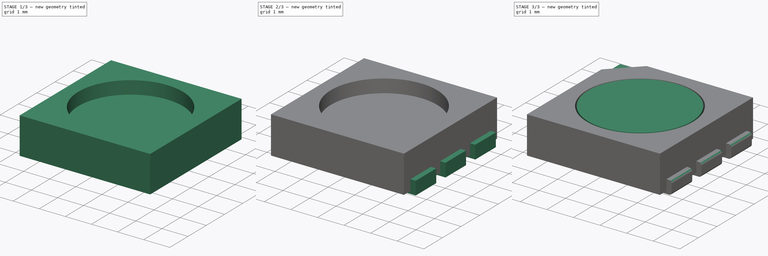
[diagram: build sequence overview — one tinted view per stage of 3, left to right]
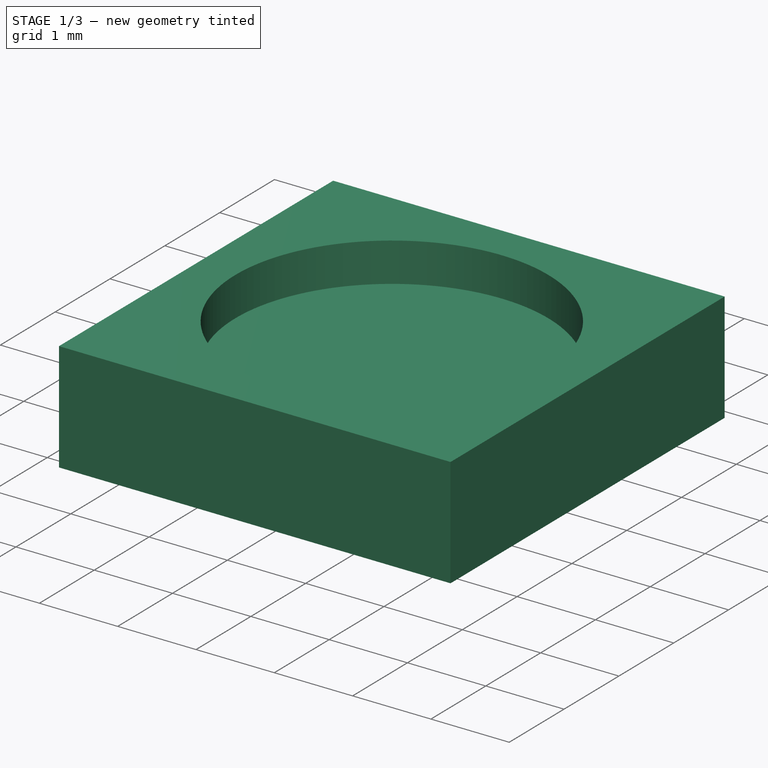
[diagram: stage 1 of 3 — iso view after this stage's code; geometry added in this stage tinted green]
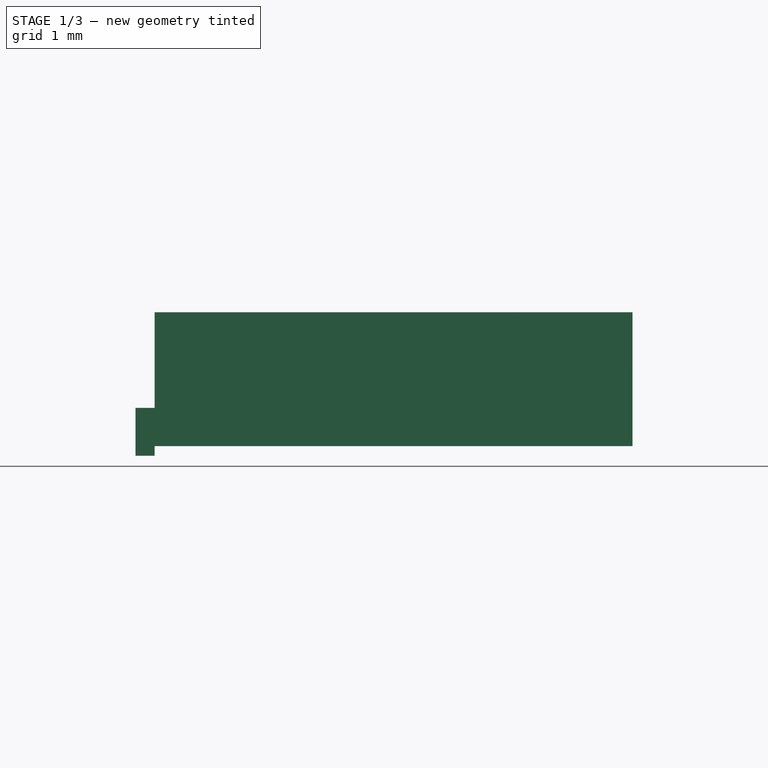
[diagram: stage 1 of 3 — front view after this stage's code; geometry added in this stage tinted green]
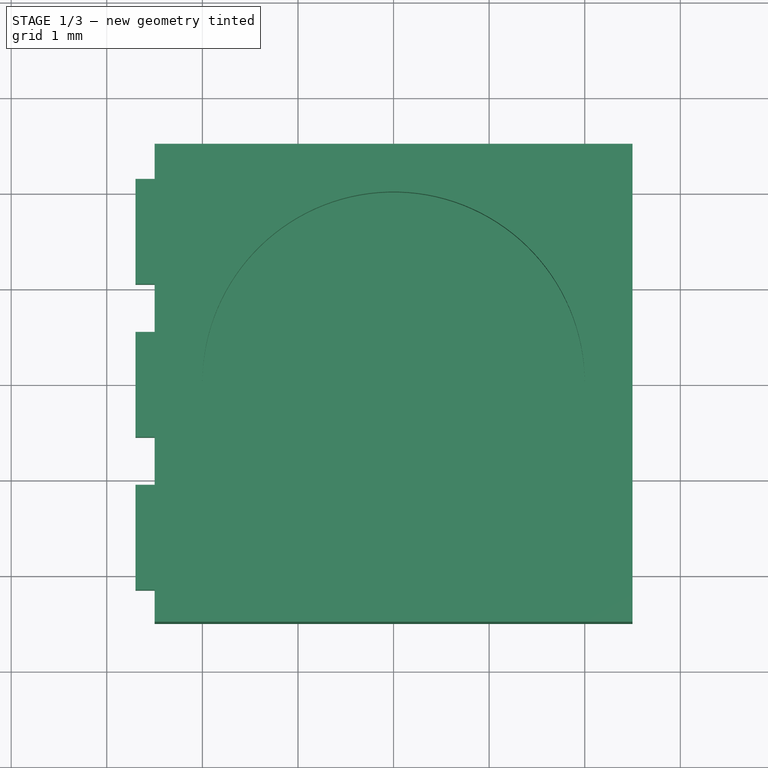
[diagram: stage 1 of 3 — top view after this stage's code; geometry added in this stage tinted green]
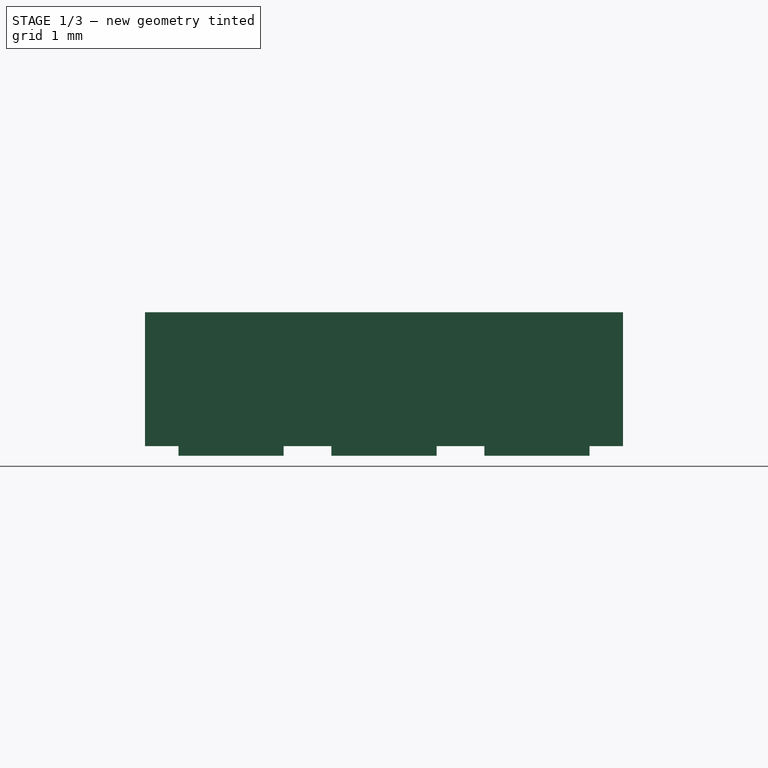
[diagram: stage 1 of 3 — right view after this stage's code; geometry added in this stage tinted green]
FCSTD DOCUMENT  (FreeCAD 0.17R13528 (Git))
Label: RGB_LED_5050-6
License: All rights reserved
LicenseURL: http://en.wikipedia.org/wiki/All_rights_reserved
objects: Sketcher::SketchObject×7, PartDesign::Pad×5, PartDesign::Pocket×2, PartDesign::Fillet×1, PartDesign::Body×1
note: 23 computed .brp shape members not serialized (recipe doc carries the construction recipe); baked Part::Feature solids carry a one-line shape summary decoded from their .brp

FEATURE [Sketcher::SketchObject] Sketch
  MapMode = 5
  Support = -> [XY_Plane]
  sketch-geometry (4):
    g0: LineSegment StartX=-2.5 StartY=2.5 StartZ=0 EndX=2.5 EndY=2.5 EndZ=0
    g1: LineSegment StartX=2.5 StartY=2.5 StartZ=0 EndX=2.5 EndY=-2.5 EndZ=0
    g2: LineSegment StartX=2.5 StartY=-2.5 StartZ=0 EndX=-2.5 EndY=-2.5 EndZ=0
    g3: LineSegment StartX=-2.5 StartY=-2.5 StartZ=0 EndX=-2.5 EndY=2.5 EndZ=0
  constraints (12):
    c: Coincident(g0,g1)
    c: Coincident(g1,g2)
    c: Coincident(g2,g3)
    c: Coincident(g3,g0)
    c: Horizontal(g0)
    c: Horizontal(g2)
    c: Vertical(g1)
    c: Vertical(g3)
    c: Symmetric(g0,g0,g-2)
    c: Symmetric(g0,g2,g-1)
    c: Equal(g0,g3)
    c: DistanceX(g0,g0) = 5
FEATURE [PartDesign::Pad] Pad
  Length = 1.4
  Length2 = 100
  Profile = -> Sketch
  Refine = true
  Type = 0
FEATURE [Sketcher::SketchObject] Sketch001
  MapMode = 5
  Placement = pos=(0,0,1.4) rot=(0,0,1;0rad)
  Support = -> [Pad]
  sketch-geometry (1):
    g0: Circle CenterX=0 CenterY=0 CenterZ=0 NormalX=0 NormalY=0 NormalZ=1 AngleXU=0 Radius=2
  constraints (2):
    c: Coincident(g0,g-1)
    c: Radius(g0) = 2
FEATURE [PartDesign::Pocket] Pocket
  BaseFeature = -> Pad
  Length = 0.5
  Length2 = 100
  Profile = -> Sketch001
  Refine = true
  Type = 0
FEATURE [Sketcher::SketchObject] Sketch002
  ExternalGeometry = -> [Pocket]
  MapMode = 5
  Placement = pos=(-2.5,0,0) rot=(0.57735,-0.57735,-0.57735;2.0944rad)
  Support = -> [Pocket]
  sketch-geometry (14):
    g0: LineSegment StartX=-0.55 StartY=0.4 StartZ=0 EndX=0.55 EndY=0.4 EndZ=0
    g1: LineSegment StartX=0.55 StartY=0.4 StartZ=0 EndX=0.55 EndY=-0.1 EndZ=0
    g2: LineSegment StartX=0.55 StartY=-0.1 StartZ=0 EndX=-0.55 EndY=-0.1 EndZ=0
    g3: LineSegment StartX=-0.55 StartY=-0.1 StartZ=0 EndX=-0.55 EndY=0.4 EndZ=0
    g4: LineSegment StartX=1.05 StartY=0.4 StartZ=0 EndX=2.15 EndY=0.4 EndZ=0
    g5: LineSegment StartX=2.15 StartY=0.4 StartZ=0 EndX=2.15 EndY=-0.1 EndZ=0
    g6: LineSegment StartX=2.15 StartY=-0.1 StartZ=0 EndX=1.05 EndY=-0.1 EndZ=0
    g7: LineSegment StartX=1.05 StartY=-0.1 StartZ=0 EndX=1.05 EndY=0.4 EndZ=0
    g8: LineSegment StartX=-2.15 StartY=0.4 StartZ=0 EndX=-1.05 EndY=0.4 EndZ=0
    g9: LineSegment StartX=-1.05 StartY=0.4 StartZ=0 EndX=-1.05 EndY=-0.1 EndZ=0
    g10: LineSegment StartX=-1.05 StartY=-0.1 StartZ=0 EndX=-2.15 EndY=-0.1 EndZ=0
    g11: LineSegment StartX=-2.15 StartY=-0.1 StartZ=0 EndX=-2.15 EndY=0.4 EndZ=0
    g12: LineSegment [constr] StartX=-1.05 StartY=-0.1 StartZ=0 EndX=-0.55 EndY=-0.1 EndZ=0
    g13: LineSegment [constr] StartX=0.55 StartY=-0.1 StartZ=0 EndX=1.05 EndY=-0.1 EndZ=0
  constraints (40):
    c: Coincident(g0,g1)
    c: Coincident(g1,g2)
    c: Coincident(g2,g3)
    c: Coincident(g3,g0)
    c: Horizontal(g0)
    c: Horizontal(g2)
    c: Vertical(g1)
    c: Vertical(g3)
    c: Coincident(g4,g5)
    c: Coincident(g5,g6)
    c: Coincident(g6,g7)
    c: Coincident(g7,g4)
    c: Horizontal(g4)
    c: Horizontal(g6)
    c: Vertical(g5)
    c: Vertical(g7)
    c: Coincident(g8,g9)
    c: Coincident(g9,g10)
    c: Coincident(g10,g11)
    c: Coincident(g11,g8)
    c: Horizontal(g8)
    c: Horizontal(g10)
    c: Vertical(g9)
    c: Vertical(g11)
    c: DistanceY(g10,g-3) = 1.5
    c: Coincident(g12,g9)
    c: Coincident(g12,g2)
    c: Coincident(g13,g1)
    c: Coincident(g13,g6)
    c: Horizontal(g13)
    c: Horizontal(g12)
    c: Equal(g11,g3)
    c: Equal(g3,g7)
    c: Equal(g10,g2)
    c: Equal(g2,g6)
    c: Equal(g12,g13)
    c: Symmetric(g0,g0,g-2)
    c: DistanceX(g6,g6) = 1.1
    c: DistanceY(g5,g5) = 0.5
    c: DistanceX(g10,g6) = 3.2
FEATURE [PartDesign::Pad] Pad001
  BaseFeature = -> Pocket
  Length = 0.2
  Length2 = 100
  Profile = -> Sketch002
  Refine = true
  Type = 0
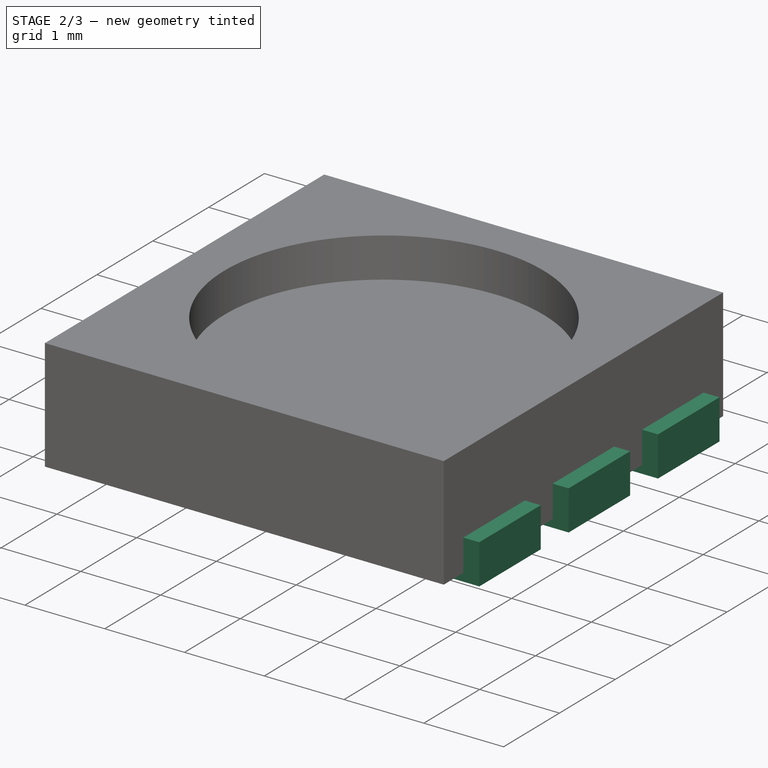
[diagram: stage 2 of 3 — iso view after this stage's code; geometry added in this stage tinted green]
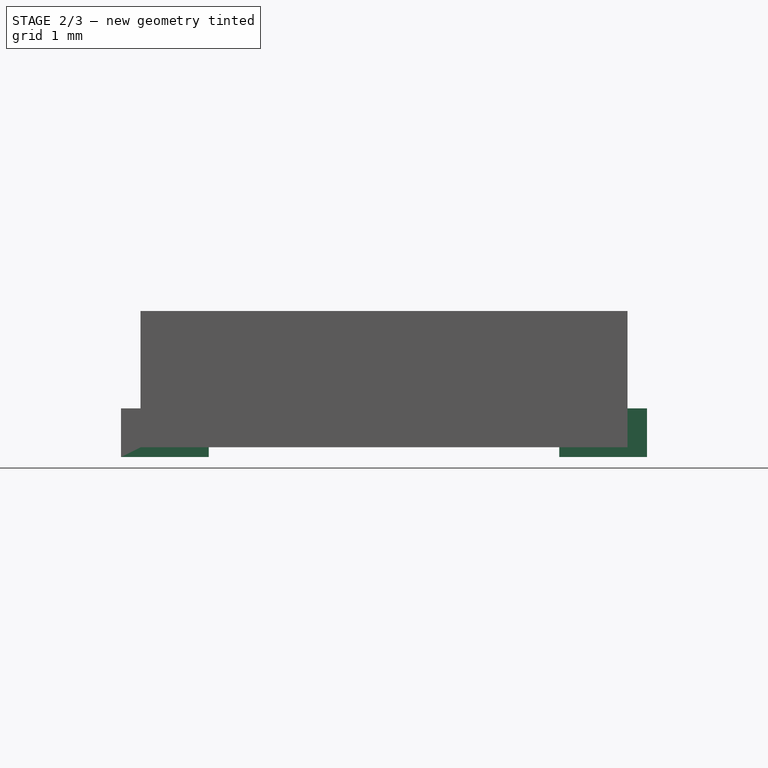
[diagram: stage 2 of 3 — front view after this stage's code; geometry added in this stage tinted green]
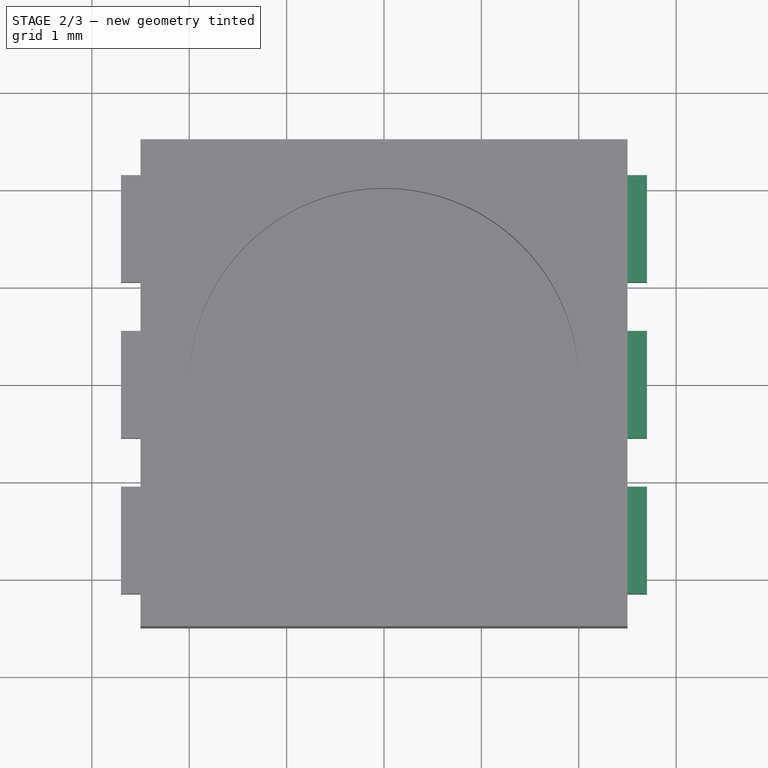
[diagram: stage 2 of 3 — top view after this stage's code; geometry added in this stage tinted green]
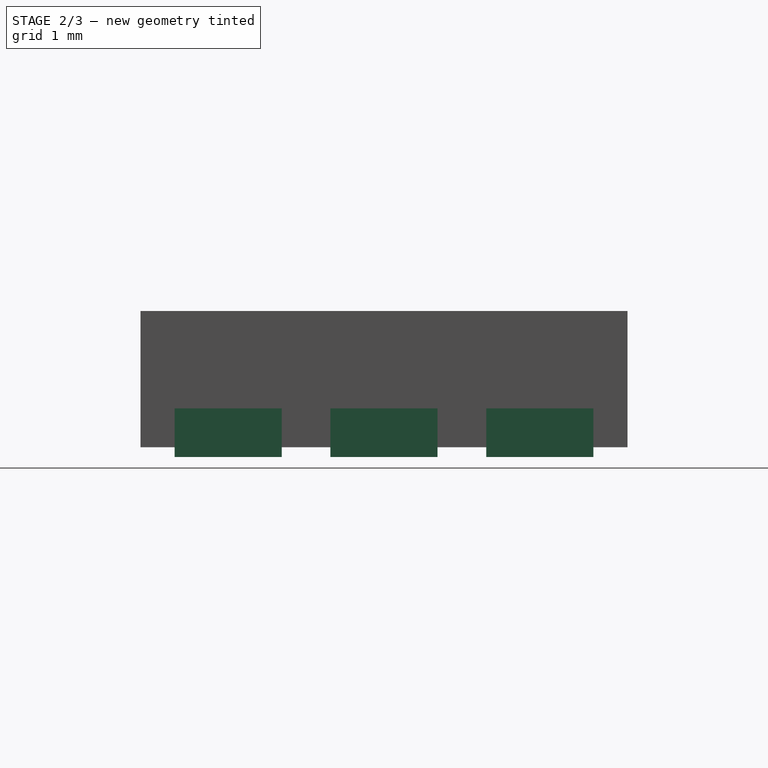
[diagram: stage 2 of 3 — right view after this stage's code; geometry added in this stage tinted green]
FEATURE [Sketcher::SketchObject] Sketch003
  ExternalGeometry = -> [Pad001]
  MapMode = 5
  Placement = pos=(2.5,0,0) rot=(0.57735,0.57735,0.57735;2.0944rad)
  Support = -> [Pad001]
  sketch-geometry (12):
    g0: LineSegment StartX=-2.15 StartY=-0.1 StartZ=0 EndX=-1.05 EndY=-0.1 EndZ=0
    g1: LineSegment StartX=-1.05 StartY=-0.1 StartZ=0 EndX=-1.05 EndY=0.4 EndZ=0
    g2: LineSegment StartX=-1.05 StartY=0.4 StartZ=0 EndX=-2.15 EndY=0.4 EndZ=0
    g3: LineSegment StartX=-2.15 StartY=0.4 StartZ=0 EndX=-2.15 EndY=-0.1 EndZ=0
    g4: LineSegment StartX=-0.55 StartY=0.4 StartZ=0 EndX=0.55 EndY=0.4 EndZ=0
    g5: LineSegment StartX=0.55 StartY=0.4 StartZ=0 EndX=0.55 EndY=-0.1 EndZ=0
    g6: LineSegment StartX=0.55 StartY=-0.1 StartZ=0 EndX=-0.55 EndY=-0.1 EndZ=0
    g7: LineSegment StartX=-0.55 StartY=-0.1 StartZ=0 EndX=-0.55 EndY=0.4 EndZ=0
    g8: LineSegment StartX=1.05 StartY=0.4 StartZ=0 EndX=2.15 EndY=0.4 EndZ=0
    g9: LineSegment StartX=2.15 StartY=0.4 StartZ=0 EndX=2.15 EndY=-0.1 EndZ=0
    g10: LineSegment StartX=2.15 StartY=-0.1 StartZ=0 EndX=1.05 EndY=-0.1 EndZ=0
    g11: LineSegment StartX=1.05 StartY=-0.1 StartZ=0 EndX=1.05 EndY=0.4 EndZ=0
  constraints (33):
    c: Coincident(g0,g1)
    c: Coincident(g1,g2)
    c: Coincident(g2,g3)
    c: Coincident(g3,g0)
    c: Horizontal(g0)
    c: Horizontal(g2)
    c: Vertical(g1)
    c: Vertical(g3)
    c: Coincident(g0,g-3)
    c: Coincident(g4,g5)
    c: Coincident(g5,g6)
    c: Coincident(g6,g7)
    c: Coincident(g7,g4)
    c: Horizontal(g4)
    c: Horizontal(g6)
    c: Vertical(g5)
    c: Vertical(g7)
    c: Coincident(g8,g9)
    c: Coincident(g9,g10)
    c: Coincident(g10,g11)
    c: Coincident(g11,g8)
    c: Horizontal(g8)
    c: Horizontal(g10)
    c: Vertical(g9)
    c: Vertical(g11)
    c: Coincident(g0,g-6)
    c: DistanceY(g3,g3) = 0.5
    c: Equal(g3,g7)
    c: Equal(g7,g11)
    c: Coincident(g6,g-4)
    c: Coincident(g10,g-5)
    c: Equal(g0,g6)
    c: Equal(g6,g10)
FEATURE [PartDesign::Pad] Pad002
  BaseFeature = -> Pad001
  Length = 0.2
  Length2 = 100
  Profile = -> Sketch003
  Refine = true
  Type = 0
FEATURE [Sketcher::SketchObject] Sketch004
  ExternalGeometry = -> [Pad002]
  MapMode = 5
  Placement = pos=(0,0,0) rot=(1,0,0;3.14159rad)
  Support = -> [Pad002]
  sketch-geometry (24):
    g0: LineSegment StartX=-2.5 StartY=2.15 StartZ=0 EndX=-1.8 EndY=2.15 EndZ=0
    g1: LineSegment StartX=-1.8 StartY=2.15 StartZ=0 EndX=-1.8 EndY=1.05 EndZ=0
    g2: LineSegment StartX=-1.8 StartY=1.05 StartZ=0 EndX=-2.5 EndY=1.05 EndZ=0
    g3: LineSegment StartX=-2.5 StartY=1.05 StartZ=0 EndX=-2.5 EndY=2.15 EndZ=0
    g4: LineSegment StartX=-2.5 StartY=0.55 StartZ=0 EndX=-1.8 EndY=0.55 EndZ=0
    g5: LineSegment StartX=-1.8 StartY=0.55 StartZ=0 EndX=-1.8 EndY=-0.55 EndZ=0
    g6: LineSegment StartX=-1.8 StartY=-0.55 StartZ=0 EndX=-2.5 EndY=-0.55 EndZ=0
    g7: LineSegment StartX=-2.5 StartY=-0.55 StartZ=0 EndX=-2.5 EndY=0.55 EndZ=0
    g8: LineSegment StartX=-2.5 StartY=-1.05 StartZ=0 EndX=-1.8 EndY=-1.05 EndZ=0
    g9: LineSegment StartX=-1.8 StartY=-1.05 StartZ=0 EndX=-1.8 EndY=-2.15 EndZ=0
    g10: LineSegment StartX=-1.8 StartY=-2.15 StartZ=0 EndX=-2.5 EndY=-2.15 EndZ=0
    g11: LineSegment StartX=-2.5 StartY=-2.15 StartZ=0 EndX=-2.5 EndY=-1.05 EndZ=0
    g12: LineSegment StartX=2.5 StartY=2.15 StartZ=0 EndX=1.8 EndY=2.15 EndZ=0
    g13: LineSegment StartX=1.8 StartY=2.15 StartZ=0 EndX=1.8 EndY=1.05 EndZ=0
    g14: LineSegment StartX=1.8 StartY=1.05 StartZ=0 EndX=2.5 EndY=1.05 EndZ=0
    g15: LineSegment StartX=2.5 StartY=1.05 StartZ=0 EndX=2.5 EndY=2.15 EndZ=0
    g16: LineSegment StartX=2.5 StartY=0.55 StartZ=0 EndX=1.8 EndY=0.55 EndZ=0
    g17: LineSegment StartX=1.8 StartY=0.55 StartZ=0 EndX=1.8 EndY=-0.55 EndZ=0
    g18: LineSegment StartX=1.8 StartY=-0.55 StartZ=0 EndX=2.5 EndY=-0.55 EndZ=0
    g19: LineSegment StartX=2.5 StartY=-0.55 StartZ=0 EndX=2.5 EndY=0.55 EndZ=0
    g20: LineSegment StartX=2.5 StartY=-1.05 StartZ=0 EndX=1.8 EndY=-1.05 EndZ=0
    g21: LineSegment StartX=1.8 StartY=-1.05 StartZ=0 EndX=1.8 EndY=-2.15 EndZ=0
    g22: LineSegment StartX=1.8 StartY=-2.15 StartZ=0 EndX=2.5 EndY=-2.15 EndZ=0
    g23: LineSegment StartX=2.5 StartY=-2.15 StartZ=0 EndX=2.5 EndY=-1.05 EndZ=0
  constraints (66):
    c: Coincident(g0,g1)
    c: Coincident(g1,g2)
    c: Coincident(g2,g3)
    c: Coincident(g3,g0)
    c: Horizontal(g0)
    c: Horizontal(g2)
    c: Vertical(g1)
    c: Vertical(g3)
    c: Coincident(g4,g5)
    c: Coincident(g5,g6)
    c: Coincident(g6,g7)
    c: Coincident(g7,g4)
    c: Horizontal(g4)
    c: Horizontal(g6)
    c: Vertical(g5)
    c: Vertical(g7)
    c: Coincident(g8,g9)
    c: Coincident(g9,g10)
    c: Coincident(g10,g11)
    c: Coincident(g11,g8)
    c: Horizontal(g8)
    c: Horizontal(g10)
    c: Vertical(g9)
    c: Vertical(g11)
    c: Coincident(g12,g13)
    c: Coincident(g13,g14)
    c: Coincident(g14,g15)
    c: Coincident(g15,g12)
    c: Horizontal(g12)
    c: Horizontal(g14)
    c: Vertical(g13)
    c: Vertical(g15)
    c: Coincident(g16,g17)
    c: Coincident(g17,g18)
    c: Coincident(g18,g19)
    c: Coincident(g19,g16)
    c: Horizontal(g16)
    c: Horizontal(g18)
    c: Vertical(g17)
    c: Vertical(g19)
    c: Coincident(g20,g21)
    c: Coincident(g21,g22)
    c: Coincident(g22,g23)
    c: Coincident(g23,g20)
    c: Horizontal(g20)
    c: Horizontal(g22)
    c: Vertical(g21)
    c: Vertical(g23)
    c: Coincident(g0,g-7)
    c: Coincident(g4,g-8)
    c: Coincident(g8,g-9)
    c: Coincident(g20,g-3)
    c: Coincident(g18,g-4)
    c: Coincident(g14,g-5)
    c: Equal(g2,g6)
    c: Equal(g6,g10)
    c: Equal(g10,g22)
    c: Equal(g22,g18)
    c: Equal(g18,g14)
    c: Equal(g1,g5)
    c: Equal(g5,g9)
    c: Equal(g9,g21)
    c: Equal(g21,g17)
    c: Equal(g17,g13)
    c: DistanceX(g0,g0) = 0.7
    c: Coincident(g12,g-6)
FEATURE [PartDesign::Pad] Pad003
  BaseFeature = -> Pad002
  Length = 0.1
  Length2 = 100
  Profile = -> Sketch004
  Refine = true
  Type = 0
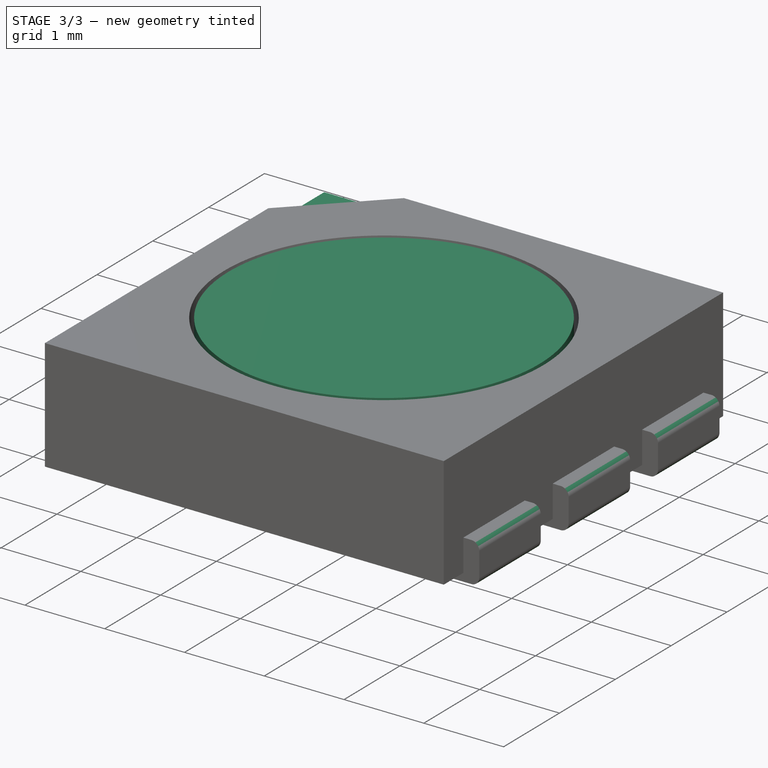
[diagram: stage 3 of 3 — iso view after this stage's code; geometry added in this stage tinted green]
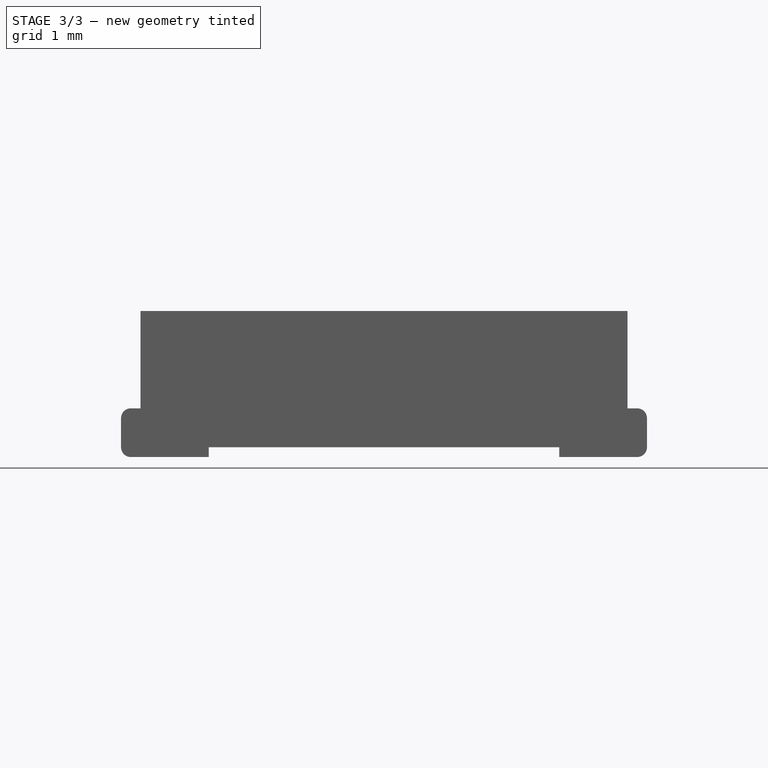
[diagram: stage 3 of 3 — front view after this stage's code; geometry added in this stage tinted green]
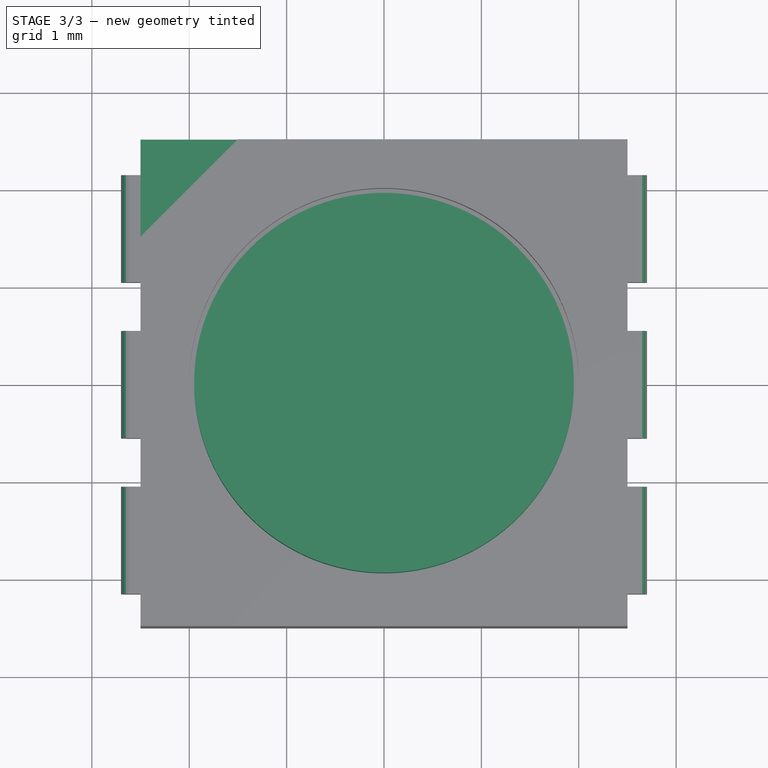
[diagram: stage 3 of 3 — top view after this stage's code; geometry added in this stage tinted green]
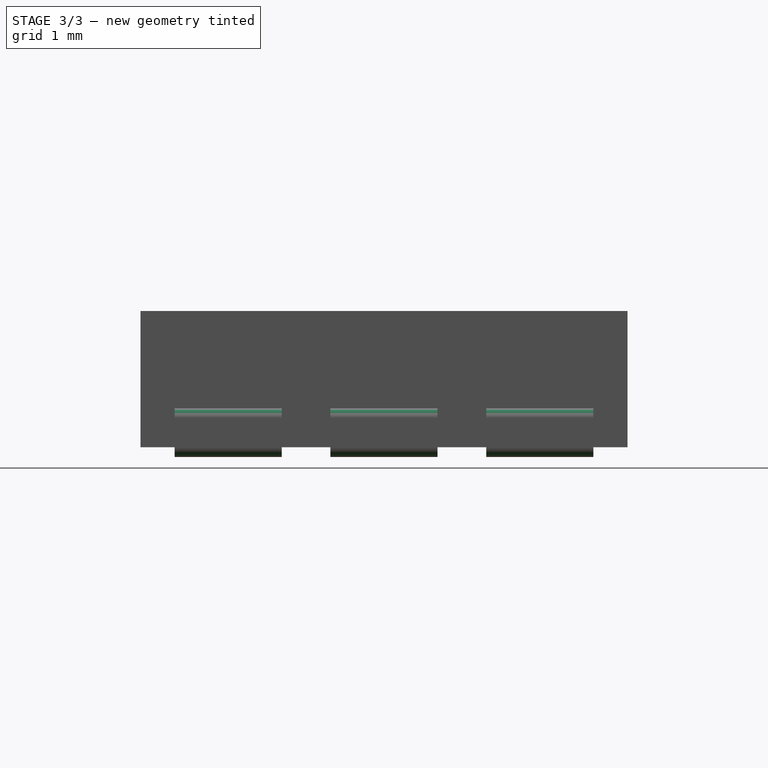
[diagram: stage 3 of 3 — right view after this stage's code; geometry added in this stage tinted green]
FEATURE [Sketcher::SketchObject] Sketch005
  MapMode = 5
  Placement = pos=(0,0,0.9) rot=(0,0,1;0rad)
  Support = -> [Pad003]
  sketch-geometry (1):
    g0: Circle CenterX=0 CenterY=0 CenterZ=0 NormalX=0 NormalY=0 NormalZ=1 AngleXU=0 Radius=1.95
  constraints (2):
    c: Coincident(g0,g-1)
    c: Radius(g0) = 1.95
FEATURE [PartDesign::Pad] Pad004
  BaseFeature = -> Pad003
  Length = 10
  Length2 = 100
  Profile = -> Sketch005
  Refine = true
  Type = 3
  UpToFace = -> Pad003 [Face5]
FEATURE [Sketcher::SketchObject] Sketch006
  ExternalGeometry = -> [Pad004]
  MapMode = 5
  Placement = pos=(0,0,1.4) rot=(0,0,1;0rad)
  Support = -> [Pad004]
  sketch-geometry (3):
    g0: LineSegment StartX=-2.5 StartY=2.5 StartZ=0 EndX=-1.5 EndY=2.5 EndZ=0
    g1: LineSegment StartX=-1.5 StartY=2.5 StartZ=0 EndX=-2.5 EndY=1.5 EndZ=0
    g2: LineSegment StartX=-2.5 StartY=1.5 StartZ=0 EndX=-2.5 EndY=2.5 EndZ=0
  constraints (8):
    c: Coincident(g0,g-3)
    c: Horizontal(g0)
    c: Coincident(g1,g0)
    c: Coincident(g2,g1)
    c: Coincident(g2,g0)
    c: Vertical(g2)
    c: Equal(g2,g0)
    c: DistanceX(g0,g0) = 1
FEATURE [PartDesign::Pocket] Pocket001
  BaseFeature = -> Pad004
  Length = 0.2
  Length2 = 100
  Profile = -> Sketch006
  Refine = true
  Type = 0
FEATURE [PartDesign::Fillet] Fillet
  Base = -> Pocket001 [Edge116,Edge118,Edge117,Edge123,Edge122,Edge121,Edge126,Edge125,Edge124,Edge129,Edge128,Edge127]
  BaseFeature = -> Pocket001
  Radius = 0.1
FEATURE [PartDesign::Body] Body
  Group = -> [Sketch,Pad,Sketch001,Pocket,Sketch002,Pad001,Sketch003,Pad002,Sketch004,Pad003,Sketch005,Pad004,Sketch006,Pocket001,Fillet]
  Origin = -> Origin
  Tip = -> Fillet
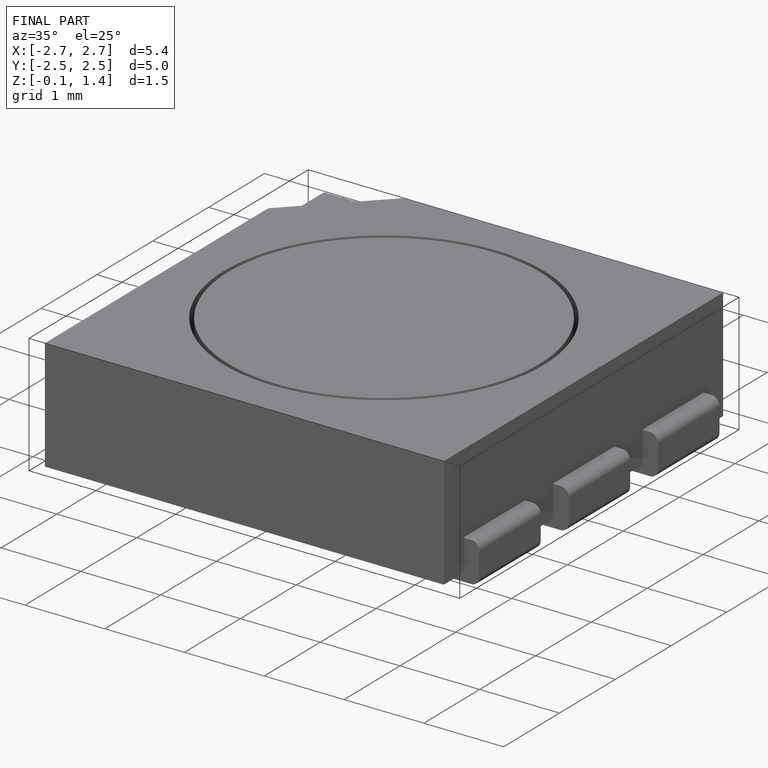
[diagram: finished part — iso view with bounding-box wireframe]
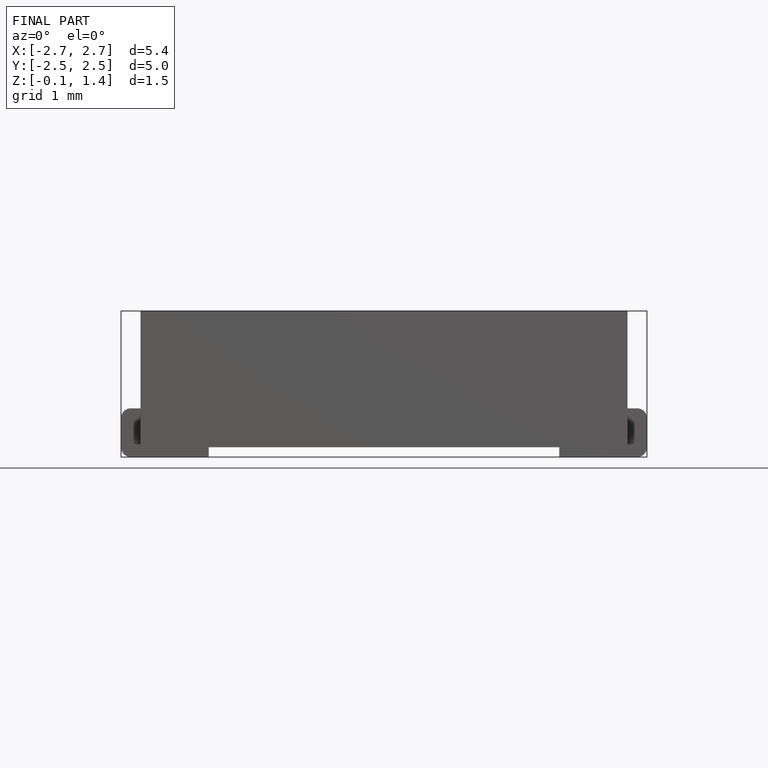
[diagram: finished part — front view with bounding-box wireframe]
